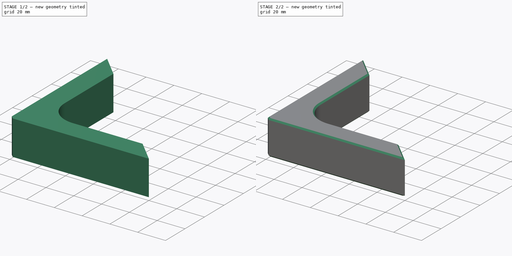
[diagram: build sequence overview — one tinted view per stage of 2, left to right]
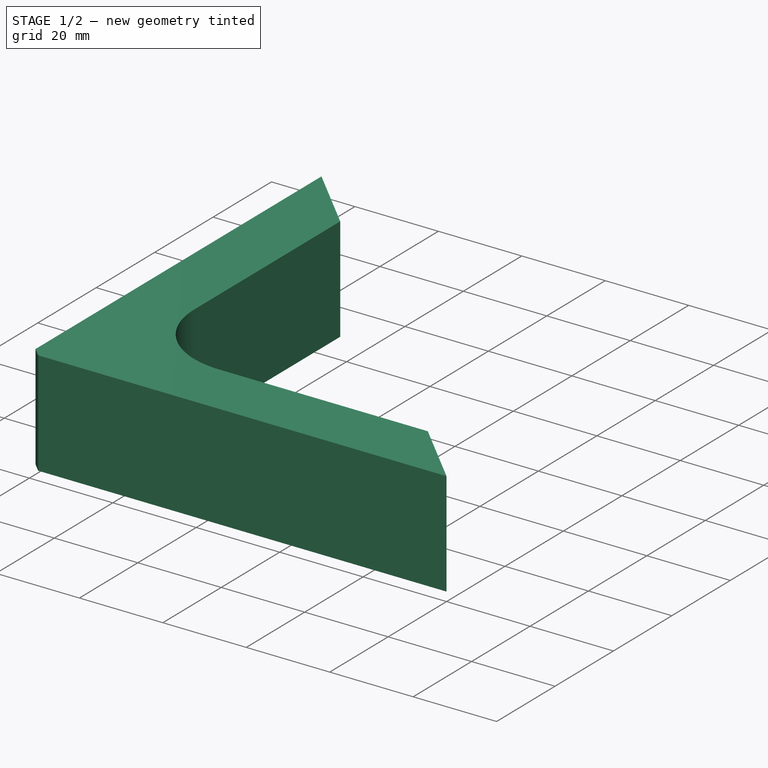
[diagram: stage 1 of 2 — iso view after this stage's code; geometry added in this stage tinted green]
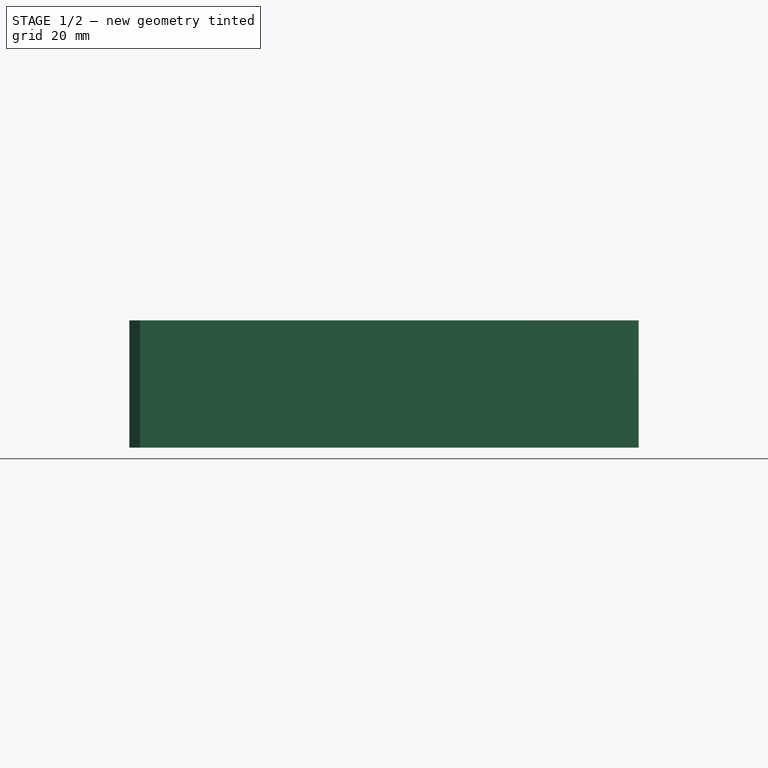
[diagram: stage 1 of 2 — front view after this stage's code; geometry added in this stage tinted green]
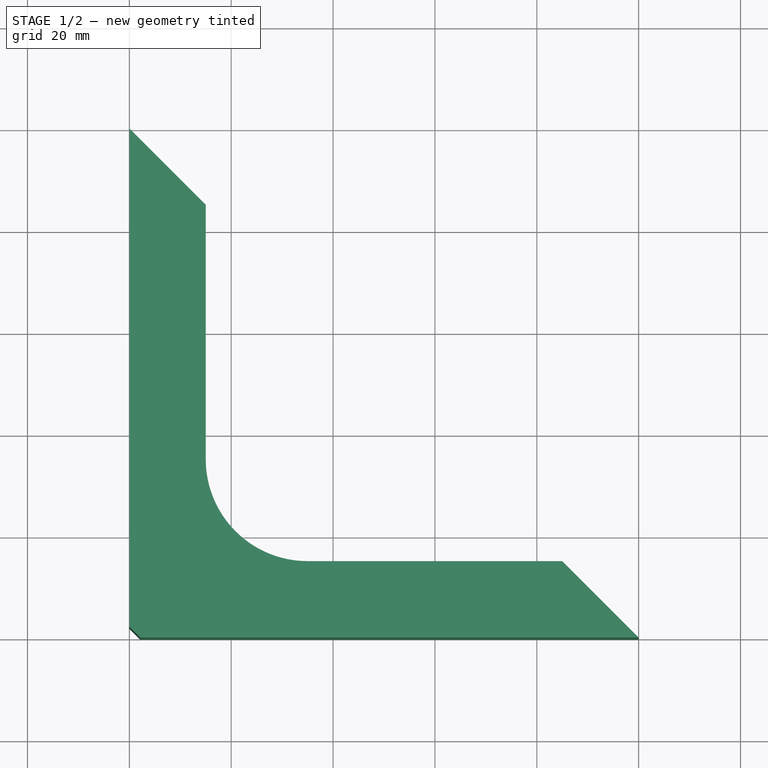
[diagram: stage 1 of 2 — top view after this stage's code; geometry added in this stage tinted green]
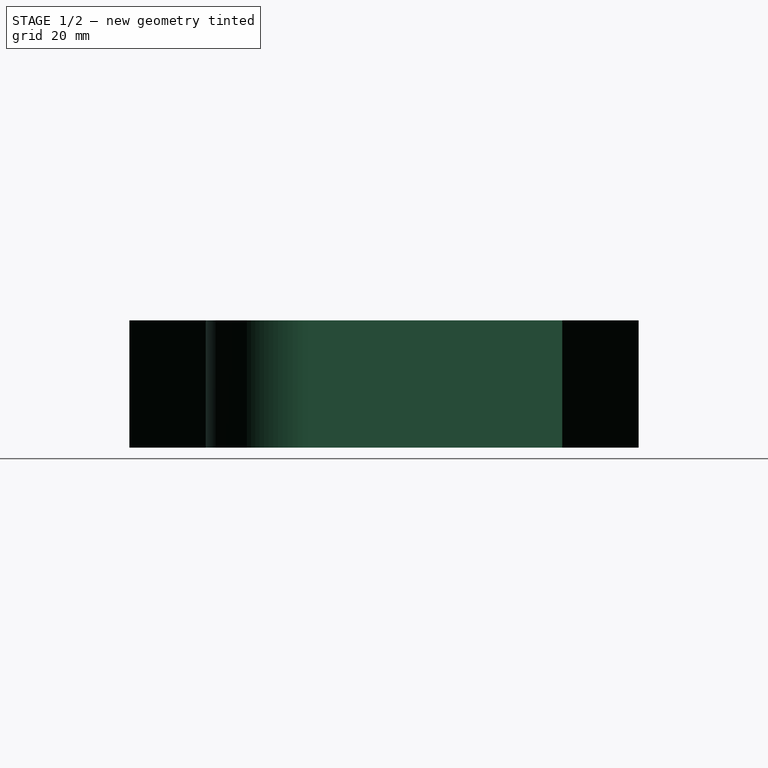
[diagram: stage 1 of 2 — right view after this stage's code; geometry added in this stage tinted green]
FCSTD DOCUMENT  (FreeCAD 0.18R4 (GitTag))
Label: kotnik90
License: All rights reserved
LicenseURL: http://en.wikipedia.org/wiki/All_rights_reserved
objects: Sketcher::SketchObject×1, PartDesign::Pad×1, PartDesign::Body×1, Part::Chamfer×1
note: 5 computed .brp shape members not serialized (recipe doc carries the construction recipe); baked Part::Feature solids carry a one-line shape summary decoded from their .brp

FEATURE [Sketcher::SketchObject] Sketch
  MapMode = 5
  Support = -> [XY_Plane]
  sketch-geometry (8):
    g0: LineSegment StartX=2.12132 StartY=0 StartZ=0 EndX=100 EndY=0 EndZ=0
    g1: LineSegment StartX=100 StartY=0 StartZ=0 EndX=85 EndY=15 EndZ=0
    g2: LineSegment StartX=85 StartY=15 StartZ=0 EndX=35 EndY=15 EndZ=0
    g3: ArcOfCircle CenterX=35 CenterY=35 CenterZ=0 NormalX=0 NormalY=0 NormalZ=1 AngleXU=0 Radius=20 StartAngle=3.14159 EndAngle=4.71239
    g4: LineSegment StartX=15 StartY=35 StartZ=0 EndX=15 EndY=85 EndZ=0
    g5: LineSegment StartX=15 StartY=85 StartZ=0 EndX=0 EndY=100 EndZ=0
    g6: LineSegment StartX=0 StartY=100 StartZ=0 EndX=0 EndY=2.12132 EndZ=0
    g7: LineSegment StartX=0 StartY=2.12132 StartZ=0 EndX=2.12132 EndY=0 EndZ=0
  constraints (23):
    c: PointOnObject(g0,g-1)
    c: Coincident(g0,g1)
    c: Coincident(g1,g2)
    c: Horizontal(g2)
    c: Tangent(g2,g3) = 1.5708
    c: Tangent(g3,g4) = 1.5708
    c: Coincident(g4,g5)
    c: PointOnObject(g5,g-2)
    c: Coincident(g5,g6)
    c: Equal(g1,g5)
    c: Vertical(g4)
    c: Equal(g2,g4)
    c: DistanceY(g-1,g6) = 100
    c: DistanceX(g-1,g4) = 15
    c: Angle(g1,g0) = 0.785398
    c: Radius(g3) = 20
    c: Coincident(g0,g7)
    c: Coincident(g6,g7)
    c: Vertical(g6)
    c: Horizontal(g0)
    c: Angle(g0,g7) = 2.35619
    c: Distance(g7) = 3
    c: Angle(g6,g5) = 0.785398
FEATURE [PartDesign::Pad] Pad
  Length = 25
  Length2 = 100
  Profile = -> Sketch
  Refine = true
  Type = 0
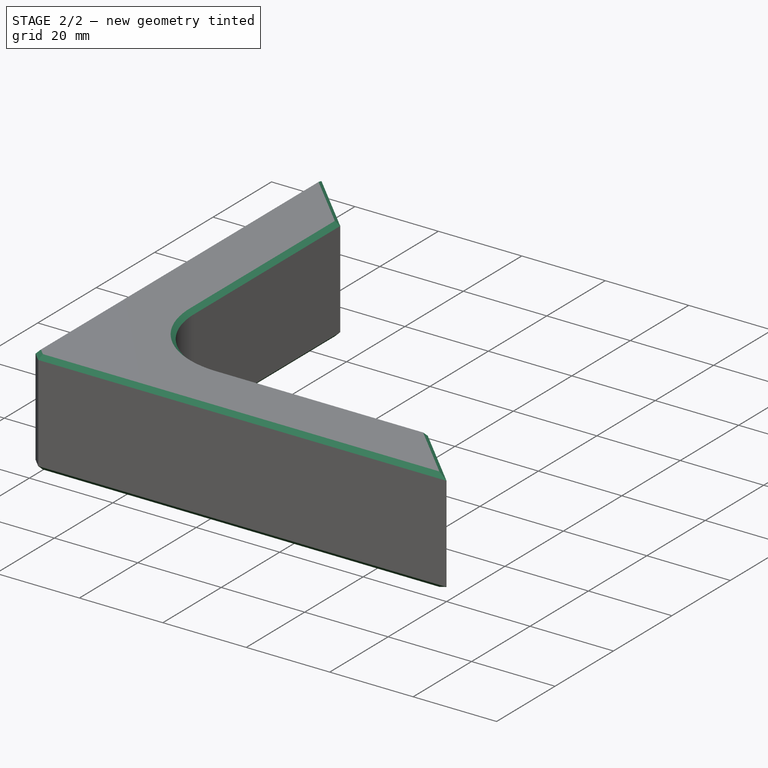
[diagram: stage 2 of 2 — iso view after this stage's code; geometry added in this stage tinted green]
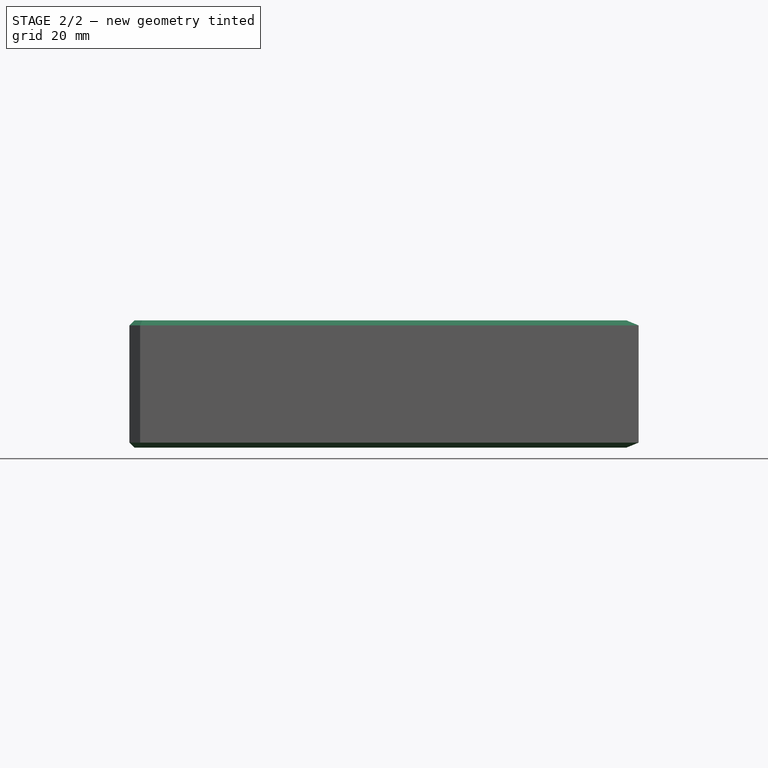
[diagram: stage 2 of 2 — front view after this stage's code; geometry added in this stage tinted green]
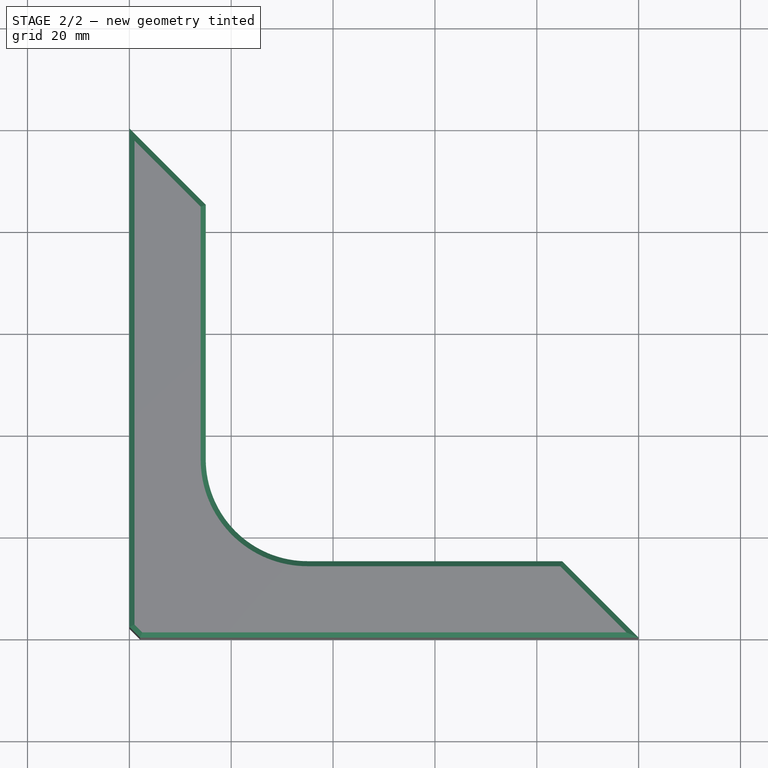
[diagram: stage 2 of 2 — top view after this stage's code; geometry added in this stage tinted green]
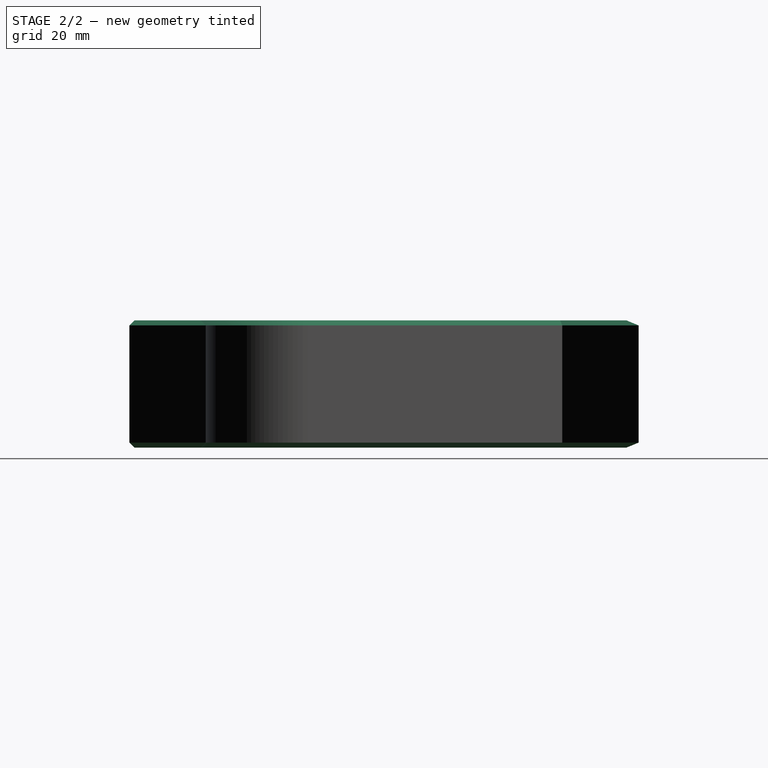
[diagram: stage 2 of 2 — right view after this stage's code; geometry added in this stage tinted green]
FEATURE [PartDesign::Body] Body
  Group = -> [Sketch,Pad]
  Origin = -> Origin
  Tip = -> Pad
FEATURE [Part::Chamfer] Chamfer
  Base = -> Pad
  Edges = 16 edges r=1: [Edge3,Edge4,Edge6,Edge7,Edge9,Edge10,Edge12,Edge13,Edge15,Edge16,Edge18,Edge19,Edge21,Edge22,Edge23,Edge24]
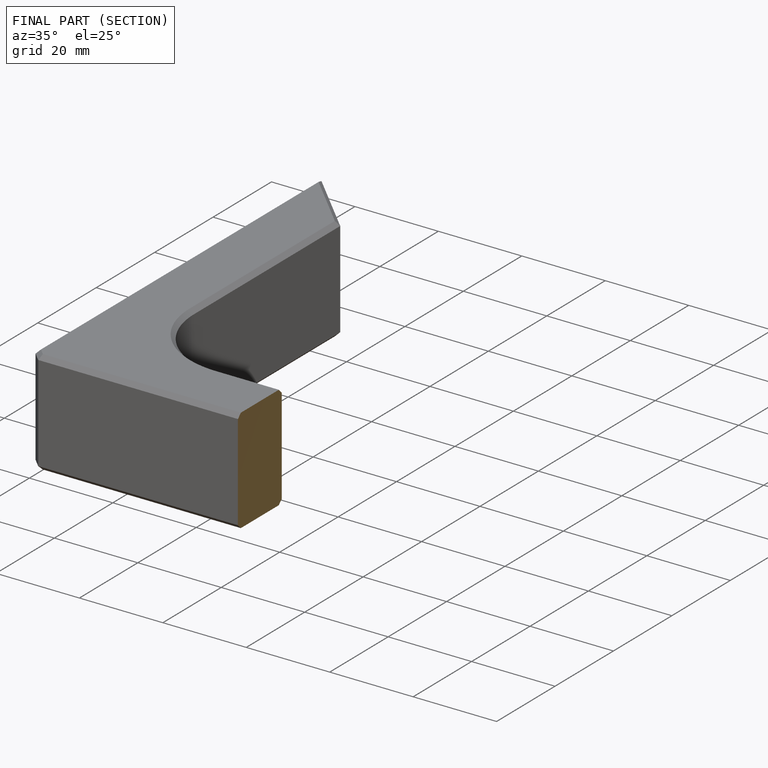
[diagram: finished part — half-section view (interior)]
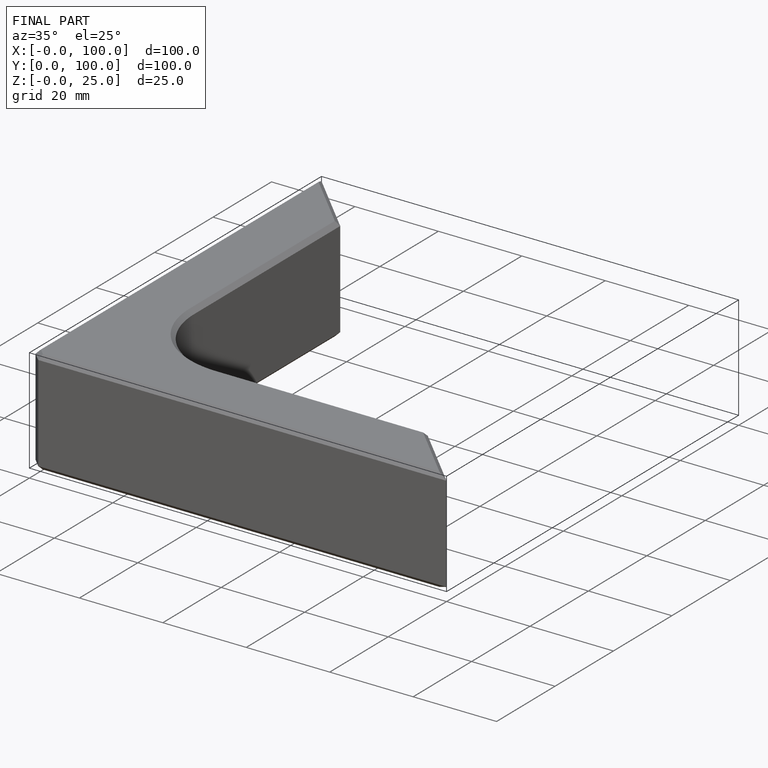
[diagram: finished part — iso view with bounding-box wireframe]
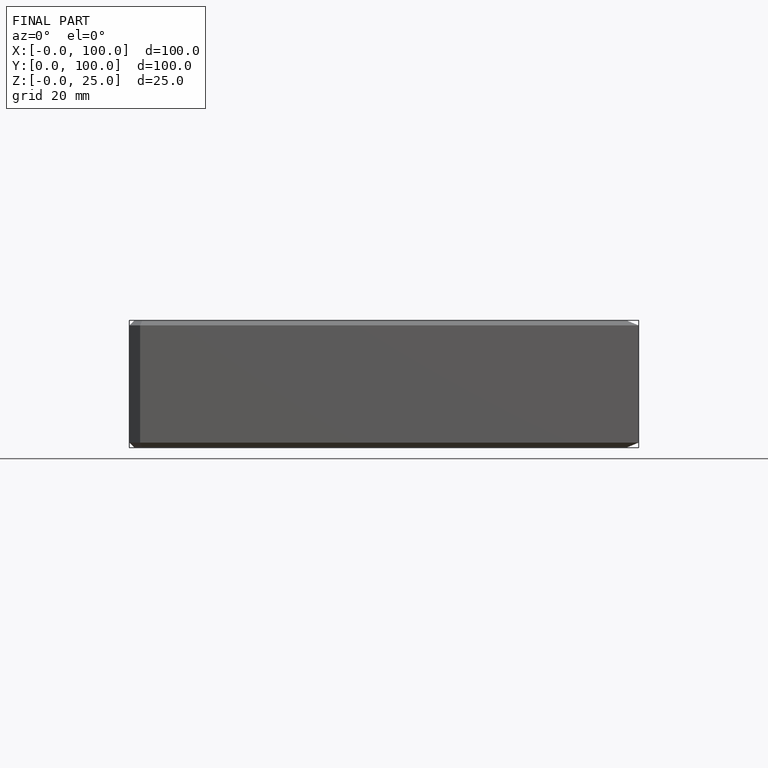
[diagram: finished part — front view with bounding-box wireframe]
